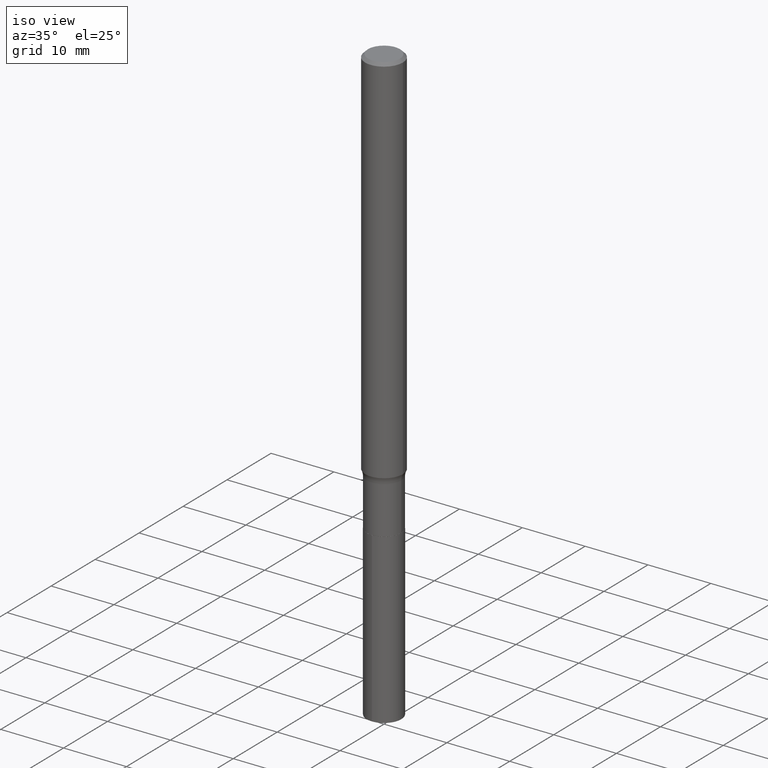
[diagram: clean part render]
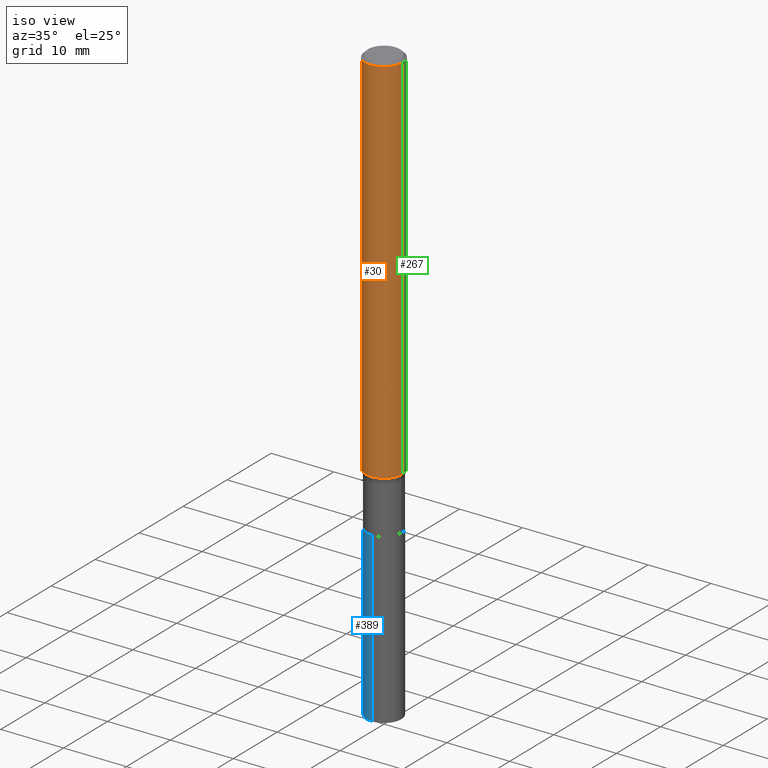
[diagram: same view with three faces highlighted in distinct colors, each labeled with its STEP entity id]
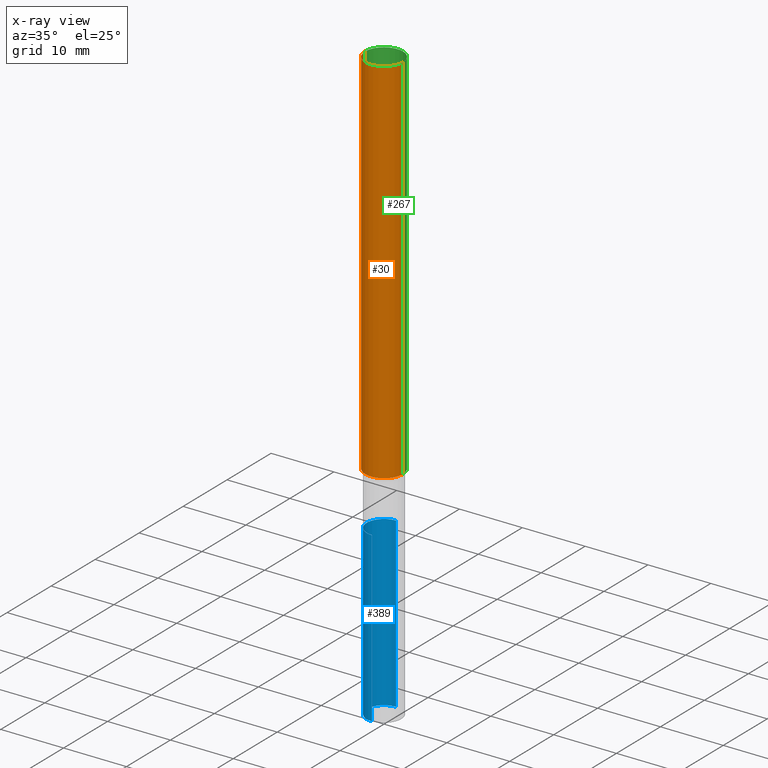
[diagram: x-ray of the same camera — body ghosted, the three highlighted faces saturated]
A machine part, iso view with three faces highlighted in distinct colors.
The next image is the same camera in x-ray (body ghosted, the three faces saturated) — at least one of them is partly hidden behind the body in this view.
Their STEP definitions:

[orange] entity #30 — the highlighted cylindrical surface (edge-blend (fillet) strip) has radius 2.9997 mm, axis along (-0, 0, 1).
#2 = EDGE_LOOP ( 'NONE', ( #228, #330, #362, #333 ) ) ;
#4 = CARTESIAN_POINT ( 'NONE',  ( -0.1181000000000001354, 8.391509709326792818E-16, -5.809262341591050090E-30 ) ) ;
#24 = CARTESIAN_POINT ( 'NONE',  ( 0.1181000000000001354, -8.246878922347490515E-16, 5.758764772215007447E-30 ) ) ;
#30 = ADVANCED_FACE ( 'NONE', ( #215 ), #312, .T. ) ;
#65 = CARTESIAN_POINT ( 'NONE',  ( -0.1181000000000002603, -7.363185460227517416E-15, -2.349242523483722422 ) ) ;
#70 = CARTESIAN_POINT ( 'NONE',  ( 5.744999309343096258E-29, -8.202336431160197980E-15, -2.349242523483722422 ) ) ;
#81 = AXIS2_PLACEMENT_3D ( 'NONE', #464, #454, #349 ) ;
#89 = EDGE_CURVE ( 'NONE', #236, #363, #377, .T. ) ;
#107 = DIRECTION ( 'NONE',  ( 1.000000000000000000, -6.982962677686266711E-15, 0.000000000000000000 ) ) ;
#114 = AXIS2_PLACEMENT_3D ( 'NONE', #178, #274, #107 ) ;
#117 = EDGE_CURVE ( 'NONE', #324, #363, #408, .T. ) ;
#134 = EDGE_CURVE ( 'NONE', #201, #236, #223, .T. ) ;
#146 = CARTESIAN_POINT ( 'NONE',  ( 0.1180999999999999966, -8.865394841523548556E-16, -0.01771500000000012301 ) ) ;
#173 = LINE ( 'NONE', #4, #317 ) ;
#178 = CARTESIAN_POINT ( 'NONE',  ( 4.332147990156999371E-31, -6.185159191760675325E-17, -0.01771500000000012301 ) ) ;
#180 = CARTESIAN_POINT ( 'NONE',  ( -0.1180999999999999966, -3.292943040606221131E-15, -0.01771500000000012301 ) ) ;
#201 = VERTEX_POINT ( 'NONE', #65 ) ;
#215 = FACE_OUTER_BOUND ( 'NONE', #2, .T. ) ;
#217 = AXIS2_PLACEMENT_3D ( 'NONE', #70, #310, #339 ) ;
#223 = CIRCLE ( 'NONE', #217, 0.1181000000000002742 ) ;
#228 = ORIENTED_EDGE ( 'NONE', *, *, #304, .F. ) ;
#236 = VERTEX_POINT ( 'NONE', #407 ) ;
#274 = DIRECTION ( 'NONE',  ( -2.445468806185136597E-29, 3.491481338843145583E-15, 1.000000000000000000 ) ) ;
#283 = VECTOR ( 'NONE', #338, 39.37007874015748143 ) ;
#304 = EDGE_CURVE ( 'NONE', #201, #324, #173, .T. ) ;
#310 = DIRECTION ( 'NONE',  ( -2.445468806185136597E-29, 3.491481338843145583E-15, 1.000000000000000000 ) ) ;
#312 = CYLINDRICAL_SURFACE ( 'NONE', #81, 0.1181000000000001354 ) ;
#317 = VECTOR ( 'NONE', #321, 39.37007874015748143 ) ;
#321 = DIRECTION ( 'NONE',  ( -2.445468806185136877E-29, 3.491481338843145188E-15, 1.000000000000000000 ) ) ;
#324 = VERTEX_POINT ( 'NONE', #180 ) ;
#330 = ORIENTED_EDGE ( 'NONE', *, *, #134, .T. ) ;
#333 = ORIENTED_EDGE ( 'NONE', *, *, #117, .F. ) ;
#338 = DIRECTION ( 'NONE',  ( -2.445468806185136877E-29, 3.491481338843145188E-15, 1.000000000000000000 ) ) ;
#339 = DIRECTION ( 'NONE',  ( 1.000000000000000000, -6.982962677686273021E-15, 0.000000000000000000 ) ) ;
#349 = DIRECTION ( 'NONE',  ( 1.000000000000000000, -6.982962677686266711E-15, 4.876176775795936353E-29 ) ) ;
#362 = ORIENTED_EDGE ( 'NONE', *, *, #89, .T. ) ;
#363 = VERTEX_POINT ( 'NONE', #146 ) ;
#377 = LINE ( 'NONE', #24, #283 ) ;
#407 = CARTESIAN_POINT ( 'NONE',  ( 0.1181000000000002603, -9.027024323394947820E-15, -2.349242523483722422 ) ) ;
#408 = CIRCLE ( 'NONE', #114, 0.1180999999999999966 ) ;
#454 = DIRECTION ( 'NONE',  ( -2.445468806185136597E-29, 3.491481338843145583E-15, 1.000000000000000000 ) ) ;
#464 = CARTESIAN_POINT ( 'NONE',  ( 0.000000000000000000, 0.000000000000000000, 0.000000000000000000 ) ) ;

[blue] entity #389 — the highlighted cylindrical surface (edge-blend (fillet) strip) has radius 2.7495 mm, axis along (-0, 0, 1).
#10 = ORIENTED_EDGE ( 'NONE', *, *, #240, .F. ) ;
#16 = ORIENTED_EDGE ( 'NONE', *, *, #356, .T. ) ;
#25 = CARTESIAN_POINT ( 'NONE',  ( -7.559057098594725883E-16, -0.1082500000000093665, -2.685199999999999587 ) ) ;
#34 = CIRCLE ( 'NONE', #391, 0.1082499999999999990 ) ;
#41 = VERTEX_POINT ( 'NONE', #176 ) ;
#46 = CARTESIAN_POINT ( 'NONE',  ( 9.139920139182118548E-29, -1.306832199932537301E-14, -3.740200000000000635 ) ) ;
#54 = VERTEX_POINT ( 'NONE', #412 ) ;
#93 = DIRECTION ( 'NONE',  ( -2.439191754325864609E-29, 3.500470434373227708E-15, 1.000000000000000000 ) ) ;
#115 = DIRECTION ( 'NONE',  ( -6.982962677686265922E-15, -1.000000000000000000, 5.047294214622195629E-15 ) ) ;
#121 = ORIENTED_EDGE ( 'NONE', *, *, #447, .T. ) ;
#123 = CARTESIAN_POINT ( 'NONE',  ( 7.691625114603739196E-16, 0.1082499999999906315, -2.685200000000000475 ) ) ;
#128 = VERTEX_POINT ( 'NONE', #375 ) ;
#164 = EDGE_LOOP ( 'NONE', ( #303, #16, #121, #10 ) ) ;
#166 = AXIS2_PLACEMENT_3D ( 'NONE', #46, #355, #220 ) ;
#167 = VECTOR ( 'NONE', #313, 39.37007874015748143 ) ;
#174 = DIRECTION ( 'NONE',  ( -2.439191754325864609E-29, 3.500470434373227708E-15, 1.000000000000000000 ) ) ;
#175 = CIRCLE ( 'NONE', #166, 0.1082500000000000129 ) ;
#176 = CARTESIAN_POINT ( 'NONE',  ( 7.691625114603868372E-16, 0.1082499999999869539, -3.740200000000001079 ) ) ;
#177 = FACE_OUTER_BOUND ( 'NONE', #164, .T. ) ;
#179 = LINE ( 'NONE', #25, #167 ) ;
#181 = CYLINDRICAL_SURFACE ( 'NONE', #383, 0.1082499999999999990 ) ;
#220 = DIRECTION ( 'NONE',  ( -6.982962677686265922E-15, -1.000000000000000000, 5.047294214622194840E-15 ) ) ;
#225 = CARTESIAN_POINT ( 'NONE',  ( -7.559057098594470489E-16, -0.1082500000000130719, -3.740200000000000191 ) ) ;
#240 = EDGE_CURVE ( 'NONE', #54, #128, #34, .T. ) ;
#303 = ORIENTED_EDGE ( 'NONE', *, *, #404, .F. ) ;
#305 = CARTESIAN_POINT ( 'NONE',  ( 6.566572838368328165E-29, -9.375325691061615108E-15, -2.685200000000000031 ) ) ;
#311 = CARTESIAN_POINT ( 'NONE',  ( 6.566572838368328165E-29, -9.375325691061615108E-15, -2.685200000000000031 ) ) ;
#313 = DIRECTION ( 'NONE',  ( -2.439191754325864609E-29, 3.500470434373227708E-15, 1.000000000000000000 ) ) ;
#327 = VECTOR ( 'NONE', #93, 39.37007874015748143 ) ;
#355 = DIRECTION ( 'NONE',  ( -2.439191754325864609E-29, 3.500470434373227708E-15, 1.000000000000000000 ) ) ;
#356 = EDGE_CURVE ( 'NONE', #41, #406, #175, .T. ) ;
#374 = DIRECTION ( 'NONE',  ( -6.982962677686265922E-15, -1.000000000000000000, 5.047294214622195629E-15 ) ) ;
#375 = CARTESIAN_POINT ( 'NONE',  ( -7.559057098594725883E-16, -0.1082500000000093665, -2.685199999999999587 ) ) ;
#383 = AXIS2_PLACEMENT_3D ( 'NONE', #311, #463, #115 ) ;
#389 = ADVANCED_FACE ( 'NONE', ( #177 ), #181, .T. ) ;
#391 = AXIS2_PLACEMENT_3D ( 'NONE', #305, #174, #374 ) ;
#404 = EDGE_CURVE ( 'NONE', #41, #54, #444, .T. ) ;
#406 = VERTEX_POINT ( 'NONE', #225 ) ;
#412 = CARTESIAN_POINT ( 'NONE',  ( 7.691625114603999520E-16, 0.1082499999999906315, -2.685200000000000475 ) ) ;
#444 = LINE ( 'NONE', #123, #327 ) ;
#447 = EDGE_CURVE ( 'NONE', #406, #128, #179, .T. ) ;
#463 = DIRECTION ( 'NONE',  ( -2.439191754325864609E-29, 3.500470434373227708E-15, 1.000000000000000000 ) ) ;

[green] entity #267 — the highlighted cylindrical surface (edge-blend (fillet) strip) has radius 2.9997 mm, axis along (-0, 0, 1).
#4 = CARTESIAN_POINT ( 'NONE',  ( -0.1181000000000001354, 8.391509709326792818E-16, -5.809262341591050090E-30 ) ) ;
#24 = CARTESIAN_POINT ( 'NONE',  ( 0.1181000000000001354, -8.246878922347490515E-16, 5.758764772215007447E-30 ) ) ;
#42 = AXIS2_PLACEMENT_3D ( 'NONE', #315, #237, #413 ) ;
#50 = CIRCLE ( 'NONE', #458, 0.1181000000000002742 ) ;
#60 = EDGE_CURVE ( 'NONE', #363, #324, #301, .T. ) ;
#65 = CARTESIAN_POINT ( 'NONE',  ( -0.1181000000000002603, -7.363185460227517416E-15, -2.349242523483722422 ) ) ;
#66 = AXIS2_PLACEMENT_3D ( 'NONE', #348, #376, #285 ) ;
#71 = CYLINDRICAL_SURFACE ( 'NONE', #66, 0.1181000000000001354 ) ;
#89 = EDGE_CURVE ( 'NONE', #236, #363, #377, .T. ) ;
#132 = ORIENTED_EDGE ( 'NONE', *, *, #60, .F. ) ;
#142 = DIRECTION ( 'NONE',  ( -2.445468806185136597E-29, 3.491481338843145583E-15, 1.000000000000000000 ) ) ;
#146 = CARTESIAN_POINT ( 'NONE',  ( 0.1180999999999999966, -8.865394841523548556E-16, -0.01771500000000012301 ) ) ;
#173 = LINE ( 'NONE', #4, #317 ) ;
#180 = CARTESIAN_POINT ( 'NONE',  ( -0.1180999999999999966, -3.292943040606221131E-15, -0.01771500000000012301 ) ) ;
#194 = ORIENTED_EDGE ( 'NONE', *, *, #89, .F. ) ;
#201 = VERTEX_POINT ( 'NONE', #65 ) ;
#213 = CARTESIAN_POINT ( 'NONE',  ( 5.744999309343096258E-29, -8.202336431160197980E-15, -2.349242523483722422 ) ) ;
#236 = VERTEX_POINT ( 'NONE', #407 ) ;
#237 = DIRECTION ( 'NONE',  ( -2.445468806185136597E-29, 3.491481338843145583E-15, 1.000000000000000000 ) ) ;
#255 = FACE_OUTER_BOUND ( 'NONE', #400, .T. ) ;
#264 = EDGE_CURVE ( 'NONE', #236, #201, #50, .T. ) ;
#265 = ORIENTED_EDGE ( 'NONE', *, *, #264, .T. ) ;
#267 = ADVANCED_FACE ( 'NONE', ( #255 ), #71, .T. ) ;
#283 = VECTOR ( 'NONE', #338, 39.37007874015748143 ) ;
#285 = DIRECTION ( 'NONE',  ( 1.000000000000000000, -6.982962677686266711E-15, 4.876176775795936353E-29 ) ) ;
#301 = CIRCLE ( 'NONE', #42, 0.1180999999999999966 ) ;
#304 = EDGE_CURVE ( 'NONE', #201, #324, #173, .T. ) ;
#315 = CARTESIAN_POINT ( 'NONE',  ( 4.332147990156999371E-31, -6.185159191760675325E-17, -0.01771500000000012301 ) ) ;
#317 = VECTOR ( 'NONE', #321, 39.37007874015748143 ) ;
#321 = DIRECTION ( 'NONE',  ( -2.445468806185136877E-29, 3.491481338843145188E-15, 1.000000000000000000 ) ) ;
#324 = VERTEX_POINT ( 'NONE', #180 ) ;
#338 = DIRECTION ( 'NONE',  ( -2.445468806185136877E-29, 3.491481338843145188E-15, 1.000000000000000000 ) ) ;
#348 = CARTESIAN_POINT ( 'NONE',  ( 0.000000000000000000, 0.000000000000000000, 0.000000000000000000 ) ) ;
#363 = VERTEX_POINT ( 'NONE', #146 ) ;
#376 = DIRECTION ( 'NONE',  ( -2.445468806185136597E-29, 3.491481338843145583E-15, 1.000000000000000000 ) ) ;
#377 = LINE ( 'NONE', #24, #283 ) ;
#388 = ORIENTED_EDGE ( 'NONE', *, *, #304, .T. ) ;
#400 = EDGE_LOOP ( 'NONE', ( #265, #388, #132, #194 ) ) ;
#407 = CARTESIAN_POINT ( 'NONE',  ( 0.1181000000000002603, -9.027024323394947820E-15, -2.349242523483722422 ) ) ;
#413 = DIRECTION ( 'NONE',  ( 1.000000000000000000, -6.982962677686266711E-15, 0.000000000000000000 ) ) ;
#428 = DIRECTION ( 'NONE',  ( 1.000000000000000000, -6.982962677686273021E-15, 0.000000000000000000 ) ) ;
#458 = AXIS2_PLACEMENT_3D ( 'NONE', #213, #142, #428 ) ;